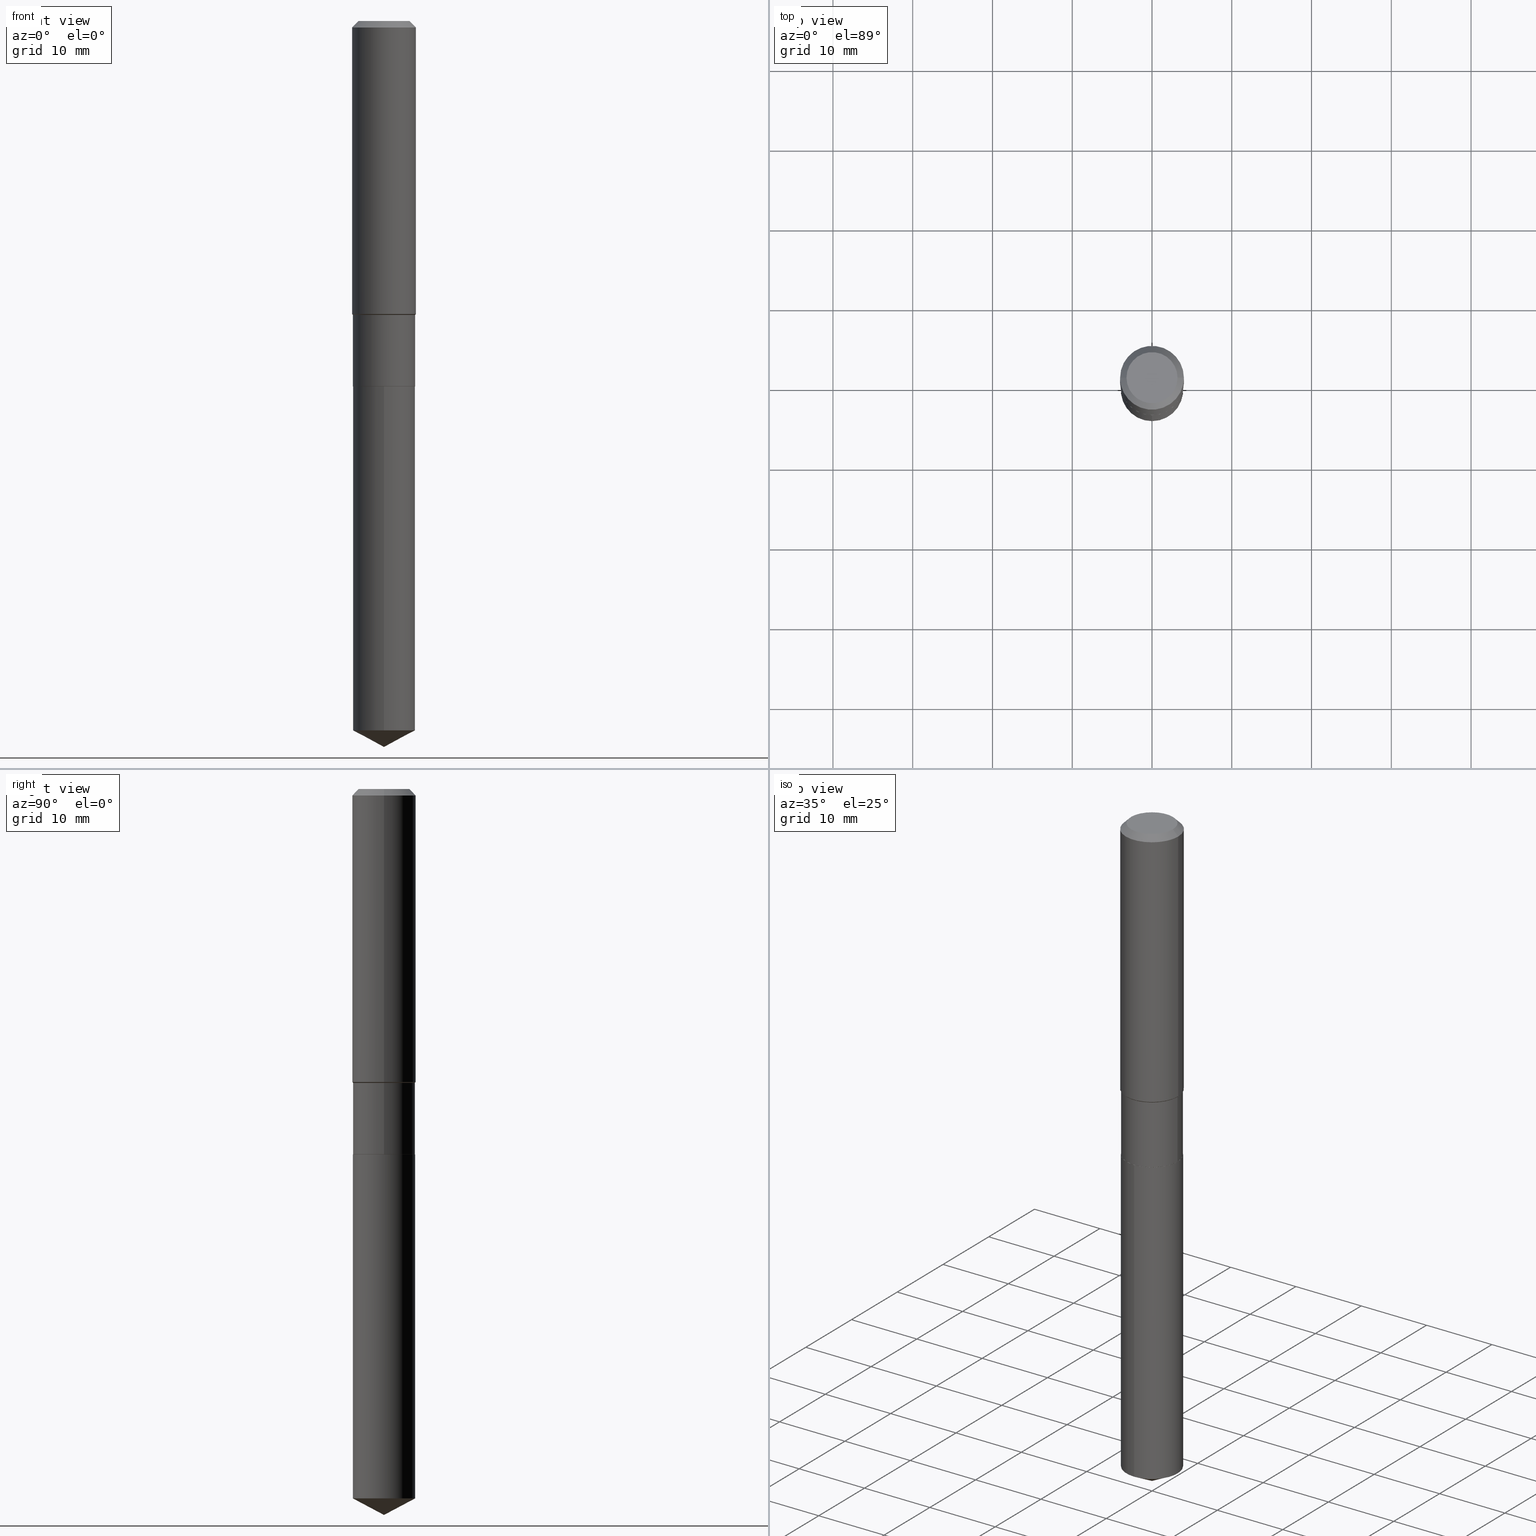
[diagram: canonical four-view strip — front | top / right | iso, engineering-drawing reading convention]
A machine part, canonical four-view strip (front | top / right | iso — engineering-drawing reading convention). The complete STEP part file that produces these views, byte-faithful:
ISO-10303-21;
HEADER;
FILE_DESCRIPTION (( 'STEP AP203' ),
    '1' );
FILE_NAME ('64848.STEP',
    '2024-04-24T19:13:29',
    ( '' ),
    ( '' ),
    'SwSTEP 2.0',
    'SolidWorks 2023',
    '' );
FILE_SCHEMA (( 'CONFIG_CONTROL_DESIGN' ));
ENDSEC;

DATA;
#1 = EDGE_CURVE ( 'NONE', #166, #127, #35, .T. ) ;
#2 = MANIFOLD_SOLID_BREP ( 'Body-Move/Copy2[1]', #141 ) ;
#3 = LINE ( 'NONE', #256, #92 ) ;
#4 = ORIENTED_EDGE ( 'NONE', *, *, #163, .T. ) ;
#5 = LINE ( 'NONE', #116, #216 ) ;
#6 = CARTESIAN_POINT ( 'NONE',  ( -0.1530499999999999916, -5.205704265947015077E-15, -1.803200000000000136 ) ) ;
#7 = FACE_OUTER_BOUND ( 'NONE', #33, .T. ) ;
#8 = CARTESIAN_POINT ( 'NONE',  ( 0.1530499999999999916, -7.364581588021842889E-15, -1.803200000000000136 ) ) ;
#9 = DIRECTION ( 'NONE',  ( -2.445468806185136597E-29, 3.491481338843145583E-15, 1.000000000000000000 ) ) ;
#10 = CARTESIAN_POINT ( 'NONE',  ( 8.561697383162351005E-29, -1.222390883126290210E-14, -3.501056016768380186 ) ) ;
#11 = DIRECTION ( 'NONE',  ( 1.000000000000000000, -6.982962677686265133E-15, 0.000000000000000000 ) ) ;
#12 = AXIS2_PLACEMENT_3D ( 'NONE', #316, #89, #128 ) ;
#13 = LOCAL_TIME ( 15, 13, 29.00000000000000000, #90 ) ;
#14 = DIRECTION ( 'NONE',  ( -0.7071067811866199593, 7.493145998870616062E-15, 0.7071067811864750752 ) ) ;
#15 = CARTESIAN_POINT ( 'NONE',  ( 7.703226739483226971E-31, -1.099816621735597538E-16, -0.03150000000000019451 ) ) ;
#16 = EDGE_LOOP ( 'NONE', ( #404, #310, #367 ) ) ;
#17 = DIRECTION ( 'NONE',  ( 1.000000000000000000, -6.982962677686267499E-15, 0.000000000000000000 ) ) ;
#18 = ORIENTED_EDGE ( 'NONE', *, *, #163, .F. ) ;
#19 = PERSON_AND_ORGANIZATION ( #183, #403 ) ;
#20 = EDGE_LOOP ( 'NONE', ( #343, #271, #462 ) ) ;
#21 = DIRECTION ( 'NONE',  ( 1.000000000000000000, 0.000000000000000000, 0.000000000000000000 ) ) ;
#22 = DIRECTION ( 'NONE',  ( -6.982962677686265133E-15, -1.000000000000000000, 3.558252026915353702E-15 ) ) ;
#23 = CONICAL_SURFACE ( 'NONE', #364, 0.1530499999999999916, 0.7853981633975507526 ) ;
#24 = CYLINDRICAL_SURFACE ( 'NONE', #354, 0.1535499999999999921 ) ;
#25 = CARTESIAN_POINT ( 'NONE',  ( 0.1575000000000001676, -6.148673211769718717E-15, -1.446050000000000058 ) ) ;
#26 = VECTOR ( 'NONE', #311, 39.37007874015748143 ) ;
#27 = AXIS2_PLACEMENT_3D ( 'NONE', #423, #473, #475 ) ;
#28 = PERSON_AND_ORGANIZATION ( #183, #403 ) ;
#29 = APPROVAL_PERSON_ORGANIZATION ( #129, #288, #346 ) ;
#30 = DIRECTION ( 'NONE',  ( 1.000000000000000000, -6.982962677686265133E-15, 0.000000000000000000 ) ) ;
#31 = DIRECTION ( 'NONE',  ( -2.445468806185136597E-29, 3.491481338843145583E-15, 1.000000000000000000 ) ) ;
#32 = EDGE_CURVE ( 'NONE', #442, #211, #304, .T. ) ;
#33 = EDGE_LOOP ( 'NONE', ( #334, #114 ) ) ;
#34 = CARTESIAN_POINT ( 'NONE',  ( 4.409669351313038346E-29, -6.295839150201959750E-15, -1.803200000000000136 ) ) ;
#35 = CIRCLE ( 'NONE', #102, 0.1535499999999999365 ) ;
#36 = CONICAL_SURFACE ( 'NONE', #419, 0.1535499999999999365, 0.7853981633974634891 ) ;
#37 = APPROVAL_PERSON_ORGANIZATION ( #258, #173, #373 ) ;
#38 = CC_DESIGN_DATE_AND_TIME_ASSIGNMENT ( #390, #192, ( #420 ) ) ;
#39 = FACE_OUTER_BOUND ( 'NONE', #152, .T. ) ;
#40 = APPROVAL_DATE_TIME ( #326, #173 ) ;
#41 = DIRECTION ( 'NONE',  ( -2.445468806185136597E-29, 3.491481338843145583E-15, 1.000000000000000000 ) ) ;
#42 = ORIENTED_EDGE ( 'NONE', *, *, #452, .T. ) ;
#43 = ORIENTED_EDGE ( 'NONE', *, *, #407, .T. ) ;
#44 = FACE_OUTER_BOUND ( 'NONE', #289, .T. ) ;
#45 = DIRECTION ( 'NONE',  ( -2.445468806185136597E-29, 3.491481338843145583E-15, 1.000000000000000000 ) ) ;
#46 = ORIENTED_EDGE ( 'NONE', *, *, #72, .F. ) ;
#47 = CARTESIAN_POINT ( 'NONE',  ( 3.536270167184016952E-29, -5.048856590034130447E-15, -1.446050000000000058 ) ) ;
#48 = FACE_OUTER_BOUND ( 'NONE', #233, .T. ) ;
#49 = ORIENTED_EDGE ( 'NONE', *, *, #1, .T. ) ;
#50 = ORIENTED_EDGE ( 'NONE', *, *, #405, .T. ) ;
#51 = FACE_OUTER_BOUND ( 'NONE', #426, .T. ) ;
#52 = ORIENTED_EDGE ( 'NONE', *, *, #213, .T. ) ;
#53 = FACE_OUTER_BOUND ( 'NONE', #96, .T. ) ;
#54 = VECTOR ( 'NONE', #14, 39.37007874015748143 ) ;
#55 = AXIS2_PLACEMENT_3D ( 'NONE', #47, #78, #380 ) ;
#56 = FACE_OUTER_BOUND ( 'NONE', #241, .T. ) ;
#57 = CARTESIAN_POINT ( 'NONE',  ( -0.1530499999999999916, -5.208353493121126278E-15, -1.803200000000000136 ) ) ;
#58 = DIRECTION ( 'NONE',  ( 1.000000000000000000, -6.982962677686265922E-15, 4.876176775795935793E-29 ) ) ;
#59 = DIRECTION ( 'NONE',  ( 1.000000000000000000, -6.982962677686265133E-15, 0.000000000000000000 ) ) ;
#60 = DIRECTION ( 'NONE',  ( 0.000000000000000000, 0.000000000000000000, 1.000000000000000000 ) ) ;
#61 = EDGE_CURVE ( 'NONE', #242, #282, #272, .T. ) ;
#62 = CARTESIAN_POINT ( 'NONE',  ( 4.408446616909946105E-29, -6.294093409532539036E-15, -1.802700000000000191 ) ) ;
#63 = CC_DESIGN_PERSON_AND_ORGANIZATION_ASSIGNMENT ( #489, #435, ( #436 ) ) ;
#64 = AXIS2_PLACEMENT_3D ( 'NONE', #417, #82, #377 ) ;
#65 = DIRECTION ( 'NONE',  ( 0.7071067811865452413, -7.319954787623248157E-15, -0.7071067811865497932 ) ) ;
#66 = DATE_AND_TIME ( #400, #83 ) ;
#67 = LINE ( 'NONE', #188, #266 ) ;
#68 = DATE_AND_TIME ( #353, #181 ) ;
#69 = LINE ( 'NONE', #8, #275 ) ;
#70 = DATE_AND_TIME ( #95, #110 ) ;
#71 = ORIENTED_EDGE ( 'NONE', *, *, #72, .T. ) ;
#72 = EDGE_CURVE ( 'NONE', #298, #444, #278, .T. ) ;
#73 =( GEOMETRIC_REPRESENTATION_CONTEXT ( 3 ) GLOBAL_UNCERTAINTY_ASSIGNED_CONTEXT ( ( #131 ) ) GLOBAL_UNIT_ASSIGNED_CONTEXT ( ( #139, #285, #283 ) ) REPRESENTATION_CONTEXT ( 'NONE', 'WORKASPACE' ) );
#74 = DIRECTION ( 'NONE',  ( 1.000000000000000000, -6.982962677686265922E-15, 0.000000000000000000 ) ) ;
#75 = DIRECTION ( 'NONE',  ( -0.7071067811865582309, 7.493145998870392025E-15, 0.7071067811865368036 ) ) ;
#76 = CARTESIAN_POINT ( 'NONE',  ( 1.091038370759677758E-15, 0.1535499999999936915, -1.803200000000000580 ) ) ;
#77 = ORIENTED_EDGE ( 'NONE', *, *, #180, .T. ) ;
#78 = DIRECTION ( 'NONE',  ( -2.445468806185136597E-29, 3.491481338843145583E-15, 1.000000000000000000 ) ) ;
#79 = CARTESIAN_POINT ( 'NONE',  ( 0.000000000000000000, 0.000000000000000000, 0.000000000000000000 ) ) ;
#80 = ORIENTED_EDGE ( 'NONE', *, *, #446, .T. ) ;
#81 = CIRCLE ( 'NONE', #130, 0.1535500000000000198 ) ;
#82 = DIRECTION ( 'NONE',  ( -2.445468806185136597E-29, 3.491481338843145583E-15, 1.000000000000000000 ) ) ;
#83 = LOCAL_TIME ( 15, 13, 29.00000000000000000, #445 ) ;
#84 = CARTESIAN_POINT ( 'NONE',  ( -9.439721640706201686E-47, 1.347742071746726764E-32, 3.860086710912459732E-18 ) ) ;
#85 = APPROVAL ( #104, 'UNSPECIFIED' ) ;
#86 = CARTESIAN_POINT ( 'NONE',  ( 0.1535499999999999643, -1.072233919158725949E-15, 7.487369439234657779E-30 ) ) ;
#87 = EDGE_LOOP ( 'NONE', ( #348, #294 ) ) ;
#88 = CARTESIAN_POINT ( 'NONE',  ( 3.545929768968448850E-29, -5.062647941322561509E-15, -1.450000000000000178 ) ) ;
#89 = DIRECTION ( 'NONE',  ( -2.445468806185136597E-29, 3.491481338843145583E-15, 1.000000000000000000 ) ) ;
#90 = COORDINATED_UNIVERSAL_TIME_OFFSET ( 5, 0, .BEHIND. ) ;
#91 = AXIS2_PLACEMENT_3D ( 'NONE', #366, #327, #111 ) ;
#92 = VECTOR ( 'NONE', #75, 39.37007874015748143 ) ;
#93 = DIRECTION ( 'NONE',  ( 1.000000000000000000, -6.982962677686269077E-15, 0.000000000000000000 ) ) ;
#94 = CC_DESIGN_APPROVAL ( #173, ( #420 ) ) ;
#95 = CALENDAR_DATE ( 2024, 24, 4 ) ;
#96 = EDGE_LOOP ( 'NONE', ( #194, #154, #4, #399 ) ) ;
#97 = DIRECTION ( 'NONE',  ( -6.982962677686266711E-15, -1.000000000000000000, 3.558252026915354491E-15 ) ) ;
#98 = AXIS2_PLACEMENT_3D ( 'NONE', #206, #349, #22 ) ;
#99 = AXIS2_PLACEMENT_3D ( 'NONE', #476, #178, #58 ) ;
#100 = LENGTH_MEASURE_WITH_UNIT ( LENGTH_MEASURE( 0.02539999999999999897 ), #317 );
#101 = EDGE_CURVE ( 'NONE', #442, #322, #165, .T. ) ;
#102 = AXIS2_PLACEMENT_3D ( 'NONE', #88, #201, #59 ) ;
#103 = AXIS2_PLACEMENT_3D ( 'NONE', #15, #368, #371 ) ;
#104 = APPROVAL_STATUS ( 'not_yet_approved' ) ;
#105 = EDGE_CURVE ( 'NONE', #440, #300, #265, .T. ) ;
#106 = ADVANCED_BREP_SHAPE_REPRESENTATION ( '64848', ( #2, #161, #132 ), #73 ) ;
#107 = ORIENTED_EDGE ( 'NONE', *, *, #452, .F. ) ;
#108 = CONICAL_SURFACE ( 'NONE', #410, 74.04434902938325536, 1.082104136236484937 ) ;
#109 = AXIS2_PLACEMENT_3D ( 'NONE', #167, #9, #464 ) ;
#110 = LOCAL_TIME ( 15, 13, 29.00000000000000000, #406 ) ;
#111 = DIRECTION ( 'NONE',  ( 1.000000000000000000, -6.982962677686267499E-15, 4.876176775795936353E-29 ) ) ;
#112 = CARTESIAN_POINT ( 'NONE',  ( -1.072233919158640357E-15, -0.1535500000000122045, -3.501056016768379742 ) ) ;
#113 = DIRECTION ( 'NONE',  ( -2.445453554861553701E-29, 3.491503179606567708E-15, 1.000000000000000000 ) ) ;
#114 = ORIENTED_EDGE ( 'NONE', *, *, #427, .T. ) ;
#115 = DIRECTION ( 'NONE',  ( -2.445468806185136597E-29, 3.491481338843145583E-15, 1.000000000000000000 ) ) ;
#116 = CARTESIAN_POINT ( 'NONE',  ( 0.1535499999999999365, -6.134881860481286866E-15, -1.450000000000000178 ) ) ;
#117 = DIRECTION ( 'NONE',  ( 1.000000000000000000, -6.982962677686266711E-15, 4.876176775795935793E-29 ) ) ;
#118 = ORIENTED_EDGE ( 'NONE', *, *, #314, .F. ) ;
#119 = CYLINDRICAL_SURFACE ( 'NONE', #27, 0.1535499999999999643 ) ;
#120 = APPLICATION_CONTEXT ( 'configuration controlled 3d designs of mechanical parts and assemblies' ) ;
#122 = DIRECTION ( 'NONE',  ( -6.982962677686266711E-15, -1.000000000000000000, 3.558252026915354491E-15 ) ) ;
#121 = PLANE ( 'NONE',  #478 ) ;
#123 = DIRECTION ( 'NONE',  ( 2.445468806185136597E-29, -3.491481338843145583E-15, -1.000000000000000000 ) ) ;
#124 = CARTESIAN_POINT ( 'NONE',  ( 4.409669351313038346E-29, -6.295839150201959750E-15, -1.803200000000000136 ) ) ;
#125 = DIRECTION ( 'NONE',  ( 1.000000000000000000, -6.982962677686265922E-15, 0.000000000000000000 ) ) ;
#126 = APPROVAL_DATE_TIME ( #68, #85 ) ;
#127 = VERTEX_POINT ( 'NONE', #424 ) ;
#128 = DIRECTION ( 'NONE',  ( 1.000000000000000000, -6.982962677686265922E-15, 0.000000000000000000 ) ) ;
#129 = PERSON_AND_ORGANIZATION ( #183, #403 ) ;
#130 = AXIS2_PLACEMENT_3D ( 'NONE', #10, #308, #171 ) ;
#131 = UNCERTAINTY_MEASURE_WITH_UNIT (LENGTH_MEASURE( 1.000000000000000082E-05 ), #139, 'distance_accuracy_value', 'NONE');
#132 = AXIS2_PLACEMENT_3D ( 'NONE', #485, #60, #21 ) ;
#133 = CARTESIAN_POINT ( 'NONE',  ( 7.703226739483226971E-31, -1.099816621735597538E-16, -0.03150000000000019451 ) ) ;
#134 = ORIENTED_EDGE ( 'NONE', *, *, #405, .F. ) ;
#135 = CARTESIAN_POINT ( 'NONE',  ( -0.1575000000000000011, -1.460314317281686560E-15, -0.03150000000000019451 ) ) ;
#136 = EDGE_CURVE ( 'NONE', #374, #444, #303, .T. ) ;
#137 = ORIENTED_EDGE ( 'NONE', *, *, #101, .T. ) ;
#138 = APPROVAL_STATUS ( 'not_yet_approved' ) ;
#139 =( CONVERSION_BASED_UNIT ( 'INCH', #100 ) LENGTH_UNIT ( ) NAMED_UNIT ( #360 ) );
#140 = PRODUCT_DEFINITION ( 'UNKNOWN', '', #471, #281 ) ;
#141 = CLOSED_SHELL ( 'NONE', ( #261, #169, #412, #184, #296 ) ) ;
#142 = CIRCLE ( 'NONE', #193, 0.1575000000000000011 ) ;
#143 = EDGE_CURVE ( 'NONE', #298, #242, #439, .T. ) ;
#144 = APPLICATION_CONTEXT ( 'configuration controlled 3d designs of mechanical parts and assemblies' ) ;
#145 = CARTESIAN_POINT ( 'NONE',  ( -0.1535499999999999365, -4.587332304667917085E-15, -1.450000000000000178 ) ) ;
#146 = ORIENTED_EDGE ( 'NONE', *, *, #461, .T. ) ;
#147 = AXIS2_PLACEMENT_3D ( 'NONE', #474, #438, #397 ) ;
#148 = AXIS2_PLACEMENT_3D ( 'NONE', #34, #449, #255 ) ;
#149 = CARTESIAN_POINT ( 'NONE',  ( -9.439721640706201686E-47, 1.347742071746726764E-32, 3.860086710912459732E-18 ) ) ;
#150 = ORIENTED_EDGE ( 'NONE', *, *, #301, .T. ) ;
#151 = ORIENTED_EDGE ( 'NONE', *, *, #187, .F. ) ;
#152 = EDGE_LOOP ( 'NONE', ( #146, #253, #189, #200 ) ) ;
#153 = CARTESIAN_POINT ( 'NONE',  ( 8.761326451002488936E-29, -1.250900844157644740E-14, -3.582699999999999996 ) ) ;
#154 = ORIENTED_EDGE ( 'NONE', *, *, #136, .T. ) ;
#155 = ORIENTED_EDGE ( 'NONE', *, *, #307, .F. ) ;
#156 = CARTESIAN_POINT ( 'NONE',  ( -0.1535499999999999643, 1.091038370759633582E-15, -7.553024831086406471E-30 ) ) ;
#157 = CARTESIAN_POINT ( 'NONE',  ( -4.719860820353100843E-47, 6.738710358733633822E-33, 1.930043355456229866E-18 ) ) ;
#158 = LINE ( 'NONE', #86, #319 ) ;
#159 = LINE ( 'NONE', #460, #413 ) ;
#160 = CC_DESIGN_PERSON_AND_ORGANIZATION_ASSIGNMENT ( #19, #248, ( #140 ) ) ;
#161 = MANIFOLD_SOLID_BREP ( 'Body-Move/Copy2[2]', #237 ) ;
#162 = FACE_OUTER_BOUND ( 'NONE', #229, .T. ) ;
#163 = EDGE_CURVE ( 'NONE', #444, #282, #318, .T. ) ;
#164 = LINE ( 'NONE', #76, #251 ) ;
#165 = LINE ( 'NONE', #57, #54 ) ;
#166 = VERTEX_POINT ( 'NONE', #145 ) ;
#167 = CARTESIAN_POINT ( 'NONE',  ( 4.409669351313038346E-29, -6.295839150201959750E-15, -1.803200000000000136 ) ) ;
#168 = ORIENTED_EDGE ( 'NONE', *, *, #461, .F. ) ;
#169 = ADVANCED_FACE ( 'NONE', ( #441 ), #108, .T. ) ;
#170 = PERSON_AND_ORGANIZATION ( #183, #403 ) ;
#171 = DIRECTION ( 'NONE',  ( -6.982962677686265133E-15, -1.000000000000000000, 3.558252026915353702E-15 ) ) ;
#172 = DIRECTION ( 'NONE',  ( -2.445468806185136597E-29, 3.491481338843145583E-15, 1.000000000000000000 ) ) ;
#173 = APPROVAL ( #254, 'UNSPECIFIED' ) ;
#174 = VECTOR ( 'NONE', #306, 39.37007874015748143 ) ;
#175 = EDGE_LOOP ( 'NONE', ( #332, #49, #196, #134 ) ) ;
#176 = CARTESIAN_POINT ( 'NONE',  ( 4.409669351313038346E-29, -6.295839150201959750E-15, -1.803200000000000136 ) ) ;
#177 = EDGE_CURVE ( 'NONE', #382, #282, #409, .T. ) ;
#178 = DIRECTION ( 'NONE',  ( -2.438088387897960049E-29, 3.491481338843145188E-15, 1.000000000000000000 ) ) ;
#179 = ORIENTED_EDGE ( 'NONE', *, *, #213, .F. ) ;
#180 = EDGE_CURVE ( 'NONE', #322, #370, #340, .T. ) ;
#181 = LOCAL_TIME ( 15, 13, 29.00000000000000000, #401 ) ;
#182 = PERSON_AND_ORGANIZATION_ROLE ( 'creator' ) ;
#183 = PERSON ( 'UNSPECIFIED', 'UNSPECIFIED', 'UNSPECIFIED', ('UNSPECIFIED'), ('UNSPECIFIED'), ('UNSPECIFIED') ) ;
#184 = ADVANCED_FACE ( 'NONE', ( #56 ), #24, .T. ) ;
#185 = CARTESIAN_POINT ( 'NONE',  ( 4.409669351313038346E-29, -6.295839150201959750E-15, -1.803200000000000136 ) ) ;
#186 = PERSON_AND_ORGANIZATION ( #183, #403 ) ;
#187 = EDGE_CURVE ( 'NONE', #274, #389, #291, .T. ) ;
#188 = CARTESIAN_POINT ( 'NONE',  ( 8.761381935681746719E-29, -1.250892967504724288E-14, -3.582699999999999996 ) ) ;
#189 = ORIENTED_EDGE ( 'NONE', *, *, #143, .F. ) ;
#190 = CYLINDRICAL_SURFACE ( 'NONE', #91, 0.1575000000000000844 ) ;
#191 = CARTESIAN_POINT ( 'NONE',  ( 0.1535499999999999921, -7.366327328691265182E-15, -1.802700000000000191 ) ) ;
#192 = DATE_TIME_ROLE ( 'classification_date' ) ;
#193 = AXIS2_PLACEMENT_3D ( 'NONE', #133, #394, #480 ) ;
#194 = ORIENTED_EDGE ( 'NONE', *, *, #427, .F. ) ;
#195 = CARTESIAN_POINT ( 'NONE',  ( -0.1260000000000000009, 9.348441284752484904E-16, 3.860086710906114178E-18 ) ) ;
#196 = ORIENTED_EDGE ( 'NONE', *, *, #345, .T. ) ;
#197 = CARTESIAN_POINT ( 'NONE',  ( 7.703226739483226971E-31, -1.099816621735597538E-16, -0.03150000000000019451 ) ) ;
#198 = ORIENTED_EDGE ( 'NONE', *, *, #177, .T. ) ;
#199 = DIRECTION ( 'NONE',  ( -2.445468806185136597E-29, 3.491481338843145583E-15, 1.000000000000000000 ) ) ;
#200 = ORIENTED_EDGE ( 'NONE', *, *, #345, .F. ) ;
#201 = DIRECTION ( 'NONE',  ( -2.445468806185136597E-29, 3.491481338843145583E-15, 1.000000000000000000 ) ) ;
#202 = CARTESIAN_POINT ( 'NONE',  ( 8.761326451002487815E-29, -1.250900844157645055E-14, -3.582699999999999996 ) ) ;
#203 = CC_DESIGN_APPROVAL ( #85, ( #471 ) ) ;
#204 = CARTESIAN_POINT ( 'NONE',  ( 4.409669351313038346E-29, -6.295839150201959750E-15, -1.803200000000000136 ) ) ;
#205 = ADVANCED_FACE ( 'NONE', ( #465 ), #467, .T. ) ;
#206 = CARTESIAN_POINT ( 'NONE',  ( 8.561697383162351005E-29, -1.222390883126290210E-14, -3.501056016768380186 ) ) ;
#207 = DIRECTION ( 'NONE',  ( -2.445468806185136597E-29, 3.491481338843145583E-15, 1.000000000000000000 ) ) ;
#208 = ORIENTED_EDGE ( 'NONE', *, *, #180, .F. ) ;
#209 = CARTESIAN_POINT ( 'NONE',  ( 4.409669351313038346E-29, -6.295839150201959750E-15, -1.803200000000000136 ) ) ;
#210 = ORIENTED_EDGE ( 'NONE', *, *, #446, .F. ) ;
#211 = VERTEX_POINT ( 'NONE', #335 ) ;
#212 = VECTOR ( 'NONE', #342, 39.37007874015748143 ) ;
#213 = EDGE_CURVE ( 'NONE', #211, #370, #69, .T. ) ;
#214 = CC_DESIGN_PERSON_AND_ORGANIZATION_ASSIGNMENT ( #186, #219, ( #471 ) ) ;
#215 = DATE_TIME_ROLE ( 'creation_date' ) ;
#216 = VECTOR ( 'NONE', #227, 39.37007874015748143 ) ;
#217 = DIRECTION ( 'NONE',  ( -2.445468806185136597E-29, 3.491481338843145583E-15, 1.000000000000000000 ) ) ;
#218 = EDGE_CURVE ( 'NONE', #382, #374, #222, .T. ) ;
#219 = PERSON_AND_ORGANIZATION_ROLE ( 'design_supplier' ) ;
#220 = ADVANCED_FACE ( 'NONE', ( #259 ), #23, .T. ) ;
#221 = AXIS2_PLACEMENT_3D ( 'NONE', #434, #207, #17 ) ;
#222 = CIRCLE ( 'NONE', #238, 0.1260000000000000009 ) ;
#223 = CC_DESIGN_APPROVAL ( #288, ( #140 ) ) ;
#224 = FACE_OUTER_BOUND ( 'NONE', #325, .T. ) ;
#225 = ADVANCED_FACE ( 'NONE', ( #224 ), #190, .T. ) ;
#226 = DIRECTION ( 'NONE',  ( -2.445468806185136597E-29, 3.491481338843145583E-15, 1.000000000000000000 ) ) ;
#227 = DIRECTION ( 'NONE',  ( 0.7071067811865582309, -2.468850131082369079E-15, 0.7071067811865368036 ) ) ;
#228 = AXIS2_PLACEMENT_3D ( 'NONE', #204, #451, #97 ) ;
#229 = EDGE_LOOP ( 'NONE', ( #463, #415, #52, #208 ) ) ;
#230 = FACE_OUTER_BOUND ( 'NONE', #20, .T. ) ;
#231 = EDGE_LOOP ( 'NONE', ( #210, #77, #43, #375 ) ) ;
#232 = FACE_OUTER_BOUND ( 'NONE', #175, .T. ) ;
#233 = EDGE_LOOP ( 'NONE', ( #383, #454, #198, #260 ) ) ;
#234 = LINE ( 'NONE', #156, #174 ) ;
#235 = CARTESIAN_POINT ( 'NONE',  ( -0.1575000000000000844, 1.119104808822158392E-15, -7.747322767151481189E-30 ) ) ;
#236 = EDGE_LOOP ( 'NONE', ( #429, #312, #151, #155 ) ) ;
#237 = CLOSED_SHELL ( 'NONE', ( #220, #372, #362, #264, #421, #205, #455, #225, #469, #247, #487, #396 ) ) ;
#238 = AXIS2_PLACEMENT_3D ( 'NONE', #149, #31, #457 ) ;
#239 = CALENDAR_DATE ( 2024, 24, 4 ) ;
#240 = PRODUCT_RELATED_PRODUCT_CATEGORY ( 'detail', '', ( #436 ) ) ;
#241 = EDGE_LOOP ( 'NONE', ( #376, #150, #458, #118 ) ) ;
#242 = VERTEX_POINT ( 'NONE', #369 ) ;
#243 = APPROVAL_DATE_TIME ( #70, #288 ) ;
#244 = EDGE_CURVE ( 'NONE', #300, #389, #164, .T. ) ;
#245 = DIRECTION ( 'NONE',  ( 2.445453554861553421E-29, -3.491503179606567708E-15, -1.000000000000000000 ) ) ;
#246 = CONICAL_SURFACE ( 'NONE', #305, 0.1575000000000000011, 0.7853981633974450594 ) ;
#247 = ADVANCED_FACE ( 'NONE', ( #7 ), #121, .F. ) ;
#248 = PERSON_AND_ORGANIZATION_ROLE ( 'creator' ) ;
#249 = EDGE_CURVE ( 'NONE', #211, #442, #350, .T. ) ;
#250 = CARTESIAN_POINT ( 'NONE',  ( 3.545929768968448850E-29, -5.062647941322561509E-15, -1.450000000000000178 ) ) ;
#251 = VECTOR ( 'NONE', #113, 39.37007874015748143 ) ;
#252 = APPLICATION_PROTOCOL_DEFINITION ( 'international standard', 'config_control_design', 1994, #144 ) ;
#253 = ORIENTED_EDGE ( 'NONE', *, *, #483, .T. ) ;
#254 = APPROVAL_STATUS ( 'not_yet_approved' ) ;
#255 = DIRECTION ( 'NONE',  ( -6.982962677686266711E-15, -1.000000000000000000, 3.558252026915354491E-15 ) ) ;
#256 = CARTESIAN_POINT ( 'NONE',  ( -0.1535499999999999365, -3.971609570562927927E-15, -1.450000000000000178 ) ) ;
#257 = ORIENTED_EDGE ( 'NONE', *, *, #187, .T. ) ;
#258 = PERSON_AND_ORGANIZATION ( #183, #403 ) ;
#259 = FACE_OUTER_BOUND ( 'NONE', #450, .T. ) ;
#260 = ORIENTED_EDGE ( 'NONE', *, *, #277, .T. ) ;
#261 = ADVANCED_FACE ( 'NONE', ( #488 ), #486, .T. ) ;
#262 = CARTESIAN_POINT ( 'NONE',  ( -8.751634505810821479E-28, 1.249517860443089481E-13, 35.78737874015747877 ) ) ;
#263 = DIRECTION ( 'NONE',  ( 1.000000000000000000, -6.982962677686269077E-15, 0.000000000000000000 ) ) ;
#264 = ADVANCED_FACE ( 'NONE', ( #39 ), #36, .T. ) ;
#265 = CIRCLE ( 'NONE', #98, 0.1535500000000000198 ) ;
#266 = VECTOR ( 'NONE', #365, 39.37007874015747433 ) ;
#267 = CC_DESIGN_SECURITY_CLASSIFICATION ( #420, ( #471 ) ) ;
#268 = CARTESIAN_POINT ( 'NONE',  ( 0.1260000000000000009, -1.027466422270894443E-15, 3.860086710919128072E-18 ) ) ;
#269 = DIRECTION ( 'NONE',  ( -1.000000000000000000, 6.982962677686265922E-15, 0.000000000000000000 ) ) ;
#270 = CARTESIAN_POINT ( 'NONE',  ( 0.1575000000000000011, -1.190510096822576026E-15, -0.03150000000000019451 ) ) ;
#271 = ORIENTED_EDGE ( 'NONE', *, *, #357, .T. ) ;
#272 = LINE ( 'NONE', #235, #418 ) ;
#273 = PERSON_AND_ORGANIZATION ( #183, #403 ) ;
#274 = VERTEX_POINT ( 'NONE', #284 ) ;
#275 = VECTOR ( 'NONE', #359, 39.37007874015748143 ) ;
#276 = VECTOR ( 'NONE', #428, 39.37007874015748143 ) ;
#277 = EDGE_CURVE ( 'NONE', #282, #444, #142, .T. ) ;
#278 = LINE ( 'NONE', #388, #212 ) ;
#279 = PLANE ( 'NONE',  #286 ) ;
#280 = CONICAL_SURFACE ( 'NONE', #109, 0.1530499999999999916, 0.7853981633975507526 ) ;
#281 = DESIGN_CONTEXT ( 'detailed design', #144, 'design' ) ;
#282 = VERTEX_POINT ( 'NONE', #135 ) ;
#283 =( NAMED_UNIT ( * ) SI_UNIT ( $, .STERADIAN. ) SOLID_ANGLE_UNIT ( ) );
#284 = CARTESIAN_POINT ( 'NONE',  ( -1.072233919158681970E-15, -0.1535500000000062926, -1.803199999999999470 ) ) ;
#285 =( NAMED_UNIT ( * ) PLANE_ANGLE_UNIT ( ) SI_UNIT ( $, .RADIAN. ) );
#286 = AXIS2_PLACEMENT_3D ( 'NONE', #437, #245, #395 ) ;
#287 = APPROVAL_PERSON_ORGANIZATION ( #170, #85, #323 ) ;
#288 = APPROVAL ( #138, 'UNSPECIFIED' ) ;
#289 = EDGE_LOOP ( 'NONE', ( #42, #80, #168, #290 ) ) ;
#290 = ORIENTED_EDGE ( 'NONE', *, *, #407, .F. ) ;
#291 = CIRCLE ( 'NONE', #147, 0.1535499999999999921 ) ;
#292 = CIRCLE ( 'NONE', #484, 0.1535499999999999921 ) ;
#293 = COORDINATED_UNIVERSAL_TIME_OFFSET ( 5, 0, .BEHIND. ) ;
#294 = ORIENTED_EDGE ( 'NONE', *, *, #32, .F. ) ;
#295 = ORIENTED_EDGE ( 'NONE', *, *, #61, .T. ) ;
#296 = ADVANCED_FACE ( 'NONE', ( #351 ), #279, .F. ) ;
#297 = CARTESIAN_POINT ( 'NONE',  ( 0.1575000000000000011, -1.209798283909146741E-15, -0.03150000000000019451 ) ) ;
#298 = VERTEX_POINT ( 'NONE', #25 ) ;
#299 = DIRECTION ( 'NONE',  ( -6.982962677686266711E-15, -1.000000000000000000, 3.541896320645574279E-15 ) ) ;
#300 = VERTEX_POINT ( 'NONE', #347 ) ;
#301 = EDGE_CURVE ( 'NONE', #300, #440, #81, .T. ) ;
#302 = LINE ( 'NONE', #202, #276 ) ;
#303 = LINE ( 'NONE', #270, #363 ) ;
#304 = CIRCLE ( 'NONE', #447, 0.1530499999999999916 ) ;
#305 = AXIS2_PLACEMENT_3D ( 'NONE', #197, #123, #269 ) ;
#306 = DIRECTION ( 'NONE',  ( -2.445468806185136877E-29, 3.491481338843145188E-15, 1.000000000000000000 ) ) ;
#307 = EDGE_CURVE ( 'NONE', #440, #274, #159, .T. ) ;
#308 = DIRECTION ( 'NONE',  ( -2.445453554861553701E-29, 3.491503179606567708E-15, 1.000000000000000000 ) ) ;
#309 = CARTESIAN_POINT ( 'NONE',  ( 3.545929768968448850E-29, -5.062647941322561509E-15, -1.450000000000000178 ) ) ;
#310 = ORIENTED_EDGE ( 'NONE', *, *, #320, .T. ) ;
#311 = DIRECTION ( 'NONE',  ( -0.7071067811865452413, 2.468850131082233000E-15, -0.7071067811865497932 ) ) ;
#312 = ORIENTED_EDGE ( 'NONE', *, *, #244, .T. ) ;
#313 = CONICAL_SURFACE ( 'NONE', #329, 74.04434902938325536, 1.082104136236484937 ) ;
#314 = EDGE_CURVE ( 'NONE', #389, #274, #356, .T. ) ;
#315 = DIRECTION ( 'NONE',  ( -2.445453554861553701E-29, 3.491503179606567708E-15, 1.000000000000000000 ) ) ;
#316 = CARTESIAN_POINT ( 'NONE',  ( 7.703226739483226971E-31, -1.099816621735597538E-16, -0.03150000000000019451 ) ) ;
#317 =( LENGTH_UNIT ( ) NAMED_UNIT ( * ) SI_UNIT ( $, .METRE. ) );
#318 = CIRCLE ( 'NONE', #12, 0.1575000000000000011 ) ;
#319 = VECTOR ( 'NONE', #468, 39.37007874015748143 ) ;
#320 = EDGE_CURVE ( 'NONE', #393, #300, #67, .T. ) ;
#321 = APPLICATION_PROTOCOL_DEFINITION ( 'international standard', 'config_control_design', 1994, #120 ) ;
#322 = VERTEX_POINT ( 'NONE', #411 ) ;
#323 = APPROVAL_ROLE ( '' ) ;
#324 = AXIS2_PLACEMENT_3D ( 'NONE', #309, #199, #11 ) ;
#325 = EDGE_LOOP ( 'NONE', ( #477, #50, #71, #391 ) ) ;
#326 = DATE_AND_TIME ( #331, #433 ) ;
#327 = DIRECTION ( 'NONE',  ( -2.445468806185136597E-29, 3.491481338843145583E-15, 1.000000000000000000 ) ) ;
#328 = CARTESIAN_POINT ( 'NONE',  ( 1.091038370759719765E-15, 0.1535499999999937193, -1.803200000000000580 ) ) ;
#329 = AXIS2_PLACEMENT_3D ( 'NONE', #262, #337, #299 ) ;
#330 = CARTESIAN_POINT ( 'NONE',  ( -8.751634505810821479E-28, 1.249517860443089481E-13, 35.78737874015747877 ) ) ;
#331 = CALENDAR_DATE ( 2024, 24, 4 ) ;
#332 = ORIENTED_EDGE ( 'NONE', *, *, #483, .F. ) ;
#333 = DIRECTION ( 'NONE',  ( 1.000000000000000000, -6.982962677686267499E-15, 4.876176775795936353E-29 ) ) ;
#334 = ORIENTED_EDGE ( 'NONE', *, *, #218, .T. ) ;
#335 = CARTESIAN_POINT ( 'NONE',  ( 0.1530499999999999916, -7.364581588021842889E-15, -1.803200000000000136 ) ) ;
#336 = ORIENTED_EDGE ( 'NONE', *, *, #143, .T. ) ;
#337 = DIRECTION ( 'NONE',  ( -2.445453554861553701E-29, 3.491503179606567708E-15, 1.000000000000000000 ) ) ;
#338 = DIRECTION ( 'NONE',  ( -2.445468806185136597E-29, 3.491481338843145583E-15, 1.000000000000000000 ) ) ;
#339 = DIRECTION ( 'NONE',  ( -1.000000000000000000, 6.982962677686265922E-15, -4.876176775795935793E-29 ) ) ;
#340 = CIRCLE ( 'NONE', #386, 0.1535499999999999921 ) ;
#341 = CIRCLE ( 'NONE', #324, 0.1535499999999999365 ) ;
#342 = DIRECTION ( 'NONE',  ( -2.445468806185136877E-29, 3.491481338843145188E-15, 1.000000000000000000 ) ) ;
#343 = ORIENTED_EDGE ( 'NONE', *, *, #320, .F. ) ;
#344 = CYLINDRICAL_SURFACE ( 'NONE', #355, 0.1575000000000000844 ) ;
#345 = EDGE_CURVE ( 'NONE', #127, #298, #5, .T. ) ;
#346 = APPROVAL_ROLE ( '' ) ;
#347 = CARTESIAN_POINT ( 'NONE',  ( 1.091038370759719173E-15, 0.1535499999999877796, -3.501056016768380630 ) ) ;
#348 = ORIENTED_EDGE ( 'NONE', *, *, #249, .F. ) ;
#349 = DIRECTION ( 'NONE',  ( -2.445453554861553701E-29, 3.491503179606567708E-15, 1.000000000000000000 ) ) ;
#350 = CIRCLE ( 'NONE', #402, 0.1530499999999999916 ) ;
#351 = FACE_OUTER_BOUND ( 'NONE', #408, .T. ) ;
#352 = CC_DESIGN_PERSON_AND_ORGANIZATION_ASSIGNMENT ( #273, #430, ( #420 ) ) ;
#353 = CALENDAR_DATE ( 2024, 24, 4 ) ;
#354 = AXIS2_PLACEMENT_3D ( 'NONE', #176, #315, #122 ) ;
#355 = AXIS2_PLACEMENT_3D ( 'NONE', #416, #226, #333 ) ;
#356 = CIRCLE ( 'NONE', #228, 0.1535499999999999921 ) ;
#357 = EDGE_CURVE ( 'NONE', #393, #440, #302, .T. ) ;
#358 = SECURITY_CLASSIFICATION_LEVEL ( 'unclassified' ) ;
#359 = DIRECTION ( 'NONE',  ( 0.7071067811866199593, -2.468850131083015945E-15, 0.7071067811864750752 ) ) ;
#360 = DIMENSIONAL_EXPONENTS ( 1.000000000000000000, 0.000000000000000000, 0.000000000000000000, 0.000000000000000000, 0.000000000000000000, 0.000000000000000000, 0.000000000000000000 ) ;
#361 = DIRECTION ( 'NONE',  ( 1.000000000000000000, -6.982962677686265922E-15, 0.000000000000000000 ) ) ;
#362 = ADVANCED_FACE ( 'NONE', ( #51 ), #344, .T. ) ;
#363 = VECTOR ( 'NONE', #65, 39.37007874015748143 ) ;
#364 = AXIS2_PLACEMENT_3D ( 'NONE', #185, #41, #74 ) ;
#365 = DIRECTION ( 'NONE',  ( 6.273719981627760554E-15, 0.8829475928589289868, 0.4694715627858871976 ) ) ;
#366 = CARTESIAN_POINT ( 'NONE',  ( 0.000000000000000000, 0.000000000000000000, 0.000000000000000000 ) ) ;
#367 = ORIENTED_EDGE ( 'NONE', *, *, #105, .F. ) ;
#368 = DIRECTION ( 'NONE',  ( 2.445468806185136597E-29, -3.491481338843145583E-15, -1.000000000000000000 ) ) ;
#369 = CARTESIAN_POINT ( 'NONE',  ( -0.1575000000000001676, -3.929751781211971266E-15, -1.446050000000000058 ) ) ;
#370 = VERTEX_POINT ( 'NONE', #191 ) ;
#371 = DIRECTION ( 'NONE',  ( -1.000000000000000000, 6.982962677686265922E-15, 0.000000000000000000 ) ) ;
#372 = ADVANCED_FACE ( 'NONE', ( #53 ), #448, .T. ) ;
#373 = APPROVAL_ROLE ( '' ) ;
#374 = VERTEX_POINT ( 'NONE', #268 ) ;
#375 = ORIENTED_EDGE ( 'NONE', *, *, #1, .F. ) ;
#376 = ORIENTED_EDGE ( 'NONE', *, *, #244, .F. ) ;
#377 = DIRECTION ( 'NONE',  ( 1.000000000000000000, -6.982962677686265133E-15, 0.000000000000000000 ) ) ;
#378 = DIRECTION ( 'NONE',  ( -2.445453554861553701E-29, 3.491503179606567708E-15, 1.000000000000000000 ) ) ;
#379 = CC_DESIGN_PERSON_AND_ORGANIZATION_ASSIGNMENT ( #28, #182, ( #471 ) ) ;
#380 = DIRECTION ( 'NONE',  ( 1.000000000000000000, -6.982962677686267499E-15, 0.000000000000000000 ) ) ;
#381 = DIRECTION ( 'NONE',  ( -2.445468806185136597E-29, 3.491481338843145583E-15, 1.000000000000000000 ) ) ;
#382 = VERTEX_POINT ( 'NONE', #195 ) ;
#383 = ORIENTED_EDGE ( 'NONE', *, *, #136, .F. ) ;
#384 = CARTESIAN_POINT ( 'NONE',  ( 4.408446616909946105E-29, -6.294093409532539036E-15, -1.802700000000000191 ) ) ;
#385 = CARTESIAN_POINT ( 'NONE',  ( -0.1575000000000000011, 9.898349595620272334E-16, -0.03150000000000019451 ) ) ;
#386 = AXIS2_PLACEMENT_3D ( 'NONE', #62, #381, #93 ) ;
#387 = CIRCLE ( 'NONE', #470, 0.1260000000000000009 ) ;
#388 = CARTESIAN_POINT ( 'NONE',  ( 0.1575000000000000844, -1.099816621735587677E-15, 7.679978421878603638E-30 ) ) ;
#389 = VERTEX_POINT ( 'NONE', #328 ) ;
#390 = DATE_AND_TIME ( #239, #13 ) ;
#391 = ORIENTED_EDGE ( 'NONE', *, *, #277, .F. ) ;
#392 = PLANE ( 'NONE',  #99 ) ;
#393 = VERTEX_POINT ( 'NONE', #153 ) ;
#394 = DIRECTION ( 'NONE',  ( -2.445468806185136597E-29, 3.491481338843145583E-15, 1.000000000000000000 ) ) ;
#395 = DIRECTION ( 'NONE',  ( 6.982962677686265922E-15, 1.000000000000000000, -3.491503179606567708E-15 ) ) ;
#396 = ADVANCED_FACE ( 'NONE', ( #162 ), #280, .T. ) ;
#397 = DIRECTION ( 'NONE',  ( -6.982962677686266711E-15, -1.000000000000000000, 3.558252026915354491E-15 ) ) ;
#398 = DIRECTION ( 'NONE',  ( -2.445468806185136597E-29, 3.491481338843145583E-15, 1.000000000000000000 ) ) ;
#399 = ORIENTED_EDGE ( 'NONE', *, *, #177, .F. ) ;
#400 = CALENDAR_DATE ( 2024, 24, 4 ) ;
#401 = COORDINATED_UNIVERSAL_TIME_OFFSET ( 5, 0, .BEHIND. ) ;
#402 = AXIS2_PLACEMENT_3D ( 'NONE', #124, #398, #361 ) ;
#403 = ORGANIZATION ( 'UNSPECIFIED', 'UNSPECIFIED', '' ) ;
#404 = ORIENTED_EDGE ( 'NONE', *, *, #357, .F. ) ;
#405 = EDGE_CURVE ( 'NONE', #242, #298, #456, .T. ) ;
#406 = COORDINATED_UNIVERSAL_TIME_OFFSET ( 5, 0, .BEHIND. ) ;
#407 = EDGE_CURVE ( 'NONE', #370, #127, #158, .T. ) ;
#408 = EDGE_LOOP ( 'NONE', ( #257, #482 ) ) ;
#409 = LINE ( 'NONE', #385, #26 ) ;
#410 = AXIS2_PLACEMENT_3D ( 'NONE', #330, #378, #466 ) ;
#411 = CARTESIAN_POINT ( 'NONE',  ( -0.1535499999999999921, -4.587332304667917085E-15, -1.802700000000000191 ) ) ;
#412 = ADVANCED_FACE ( 'NONE', ( #230 ), #313, .T. ) ;
#413 = VECTOR ( 'NONE', #431, 39.37007874015748143 ) ;
#414 = DIRECTION ( 'NONE',  ( 1.000000000000000000, -6.982962677686265922E-15, 4.876281427513067258E-29 ) ) ;
#415 = ORIENTED_EDGE ( 'NONE', *, *, #32, .T. ) ;
#416 = CARTESIAN_POINT ( 'NONE',  ( 0.000000000000000000, 0.000000000000000000, 0.000000000000000000 ) ) ;
#417 = CARTESIAN_POINT ( 'NONE',  ( 3.545929768968448850E-29, -5.062647941322561509E-15, -1.450000000000000178 ) ) ;
#418 = VECTOR ( 'NONE', #479, 39.37007874015748143 ) ;
#419 = AXIS2_PLACEMENT_3D ( 'NONE', #250, #217, #30 ) ;
#420 = SECURITY_CLASSIFICATION ( '', '', #358 ) ;
#421 = ADVANCED_FACE ( 'NONE', ( #44 ), #119, .T. ) ;
#422 = ORIENTED_EDGE ( 'NONE', *, *, #249, .T. ) ;
#423 = CARTESIAN_POINT ( 'NONE',  ( 0.000000000000000000, 0.000000000000000000, 0.000000000000000000 ) ) ;
#424 = CARTESIAN_POINT ( 'NONE',  ( 0.1535499999999999365, -6.134881860481286866E-15, -1.450000000000000178 ) ) ;
#425 = DIRECTION ( 'NONE',  ( 2.438088387897960049E-29, -3.491481338843145188E-15, -1.000000000000000000 ) ) ;
#426 = EDGE_LOOP ( 'NONE', ( #336, #295, #18, #46 ) ) ;
#427 = EDGE_CURVE ( 'NONE', #374, #382, #387, .T. ) ;
#428 = DIRECTION ( 'NONE',  ( -6.165590087286828929E-15, -0.8829475928589255451, 0.4694715627858933038 ) ) ;
#429 = ORIENTED_EDGE ( 'NONE', *, *, #105, .T. ) ;
#430 = PERSON_AND_ORGANIZATION_ROLE ( 'classification_officer' ) ;
#431 = DIRECTION ( 'NONE',  ( -2.445453554861553701E-29, 3.491503179606567708E-15, 1.000000000000000000 ) ) ;
#432 = AXIS2_PLACEMENT_3D ( 'NONE', #79, #45, #117 ) ;
#433 = LOCAL_TIME ( 15, 13, 29.00000000000000000, #293 ) ;
#434 = CARTESIAN_POINT ( 'NONE',  ( 3.536270167184016952E-29, -5.048856590034130447E-15, -1.446050000000000058 ) ) ;
#435 = PERSON_AND_ORGANIZATION_ROLE ( 'design_owner' ) ;
#436 = PRODUCT ( '64848', '64848', '', ( #443 ) ) ;
#437 = CARTESIAN_POINT ( 'NONE',  ( 4.409669351313038346E-29, -6.295839150201959750E-15, -1.803200000000000136 ) ) ;
#438 = DIRECTION ( 'NONE',  ( -2.445453554861553701E-29, 3.491503179606567708E-15, 1.000000000000000000 ) ) ;
#439 = CIRCLE ( 'NONE', #221, 0.1575000000000001676 ) ;
#440 = VERTEX_POINT ( 'NONE', #112 ) ;
#441 = FACE_OUTER_BOUND ( 'NONE', #16, .T. ) ;
#442 = VERTEX_POINT ( 'NONE', #6 ) ;
#443 = MECHANICAL_CONTEXT ( 'NONE', #120, 'mechanical' ) ;
#444 = VERTEX_POINT ( 'NONE', #297 ) ;
#445 = COORDINATED_UNIVERSAL_TIME_OFFSET ( 5, 0, .BEHIND. ) ;
#446 = EDGE_CURVE ( 'NONE', #322, #166, #234, .T. ) ;
#447 = AXIS2_PLACEMENT_3D ( 'NONE', #209, #172, #125 ) ;
#448 = CONICAL_SURFACE ( 'NONE', #103, 0.1575000000000000011, 0.7853981633974450594 ) ;
#449 = DIRECTION ( 'NONE',  ( -2.445453554861553701E-29, 3.491503179606567708E-15, 1.000000000000000000 ) ) ;
#450 = EDGE_LOOP ( 'NONE', ( #422, #137, #107, #179 ) ) ;
#451 = DIRECTION ( 'NONE',  ( -2.445453554861553701E-29, 3.491503179606567708E-15, 1.000000000000000000 ) ) ;
#452 = EDGE_CURVE ( 'NONE', #370, #322, #292, .T. ) ;
#453 = SHAPE_DEFINITION_REPRESENTATION ( #472, #106 ) ;
#454 = ORIENTED_EDGE ( 'NONE', *, *, #218, .F. ) ;
#455 = ADVANCED_FACE ( 'NONE', ( #232 ), #490, .T. ) ;
#456 = CIRCLE ( 'NONE', #55, 0.1575000000000001676 ) ;
#457 = DIRECTION ( 'NONE',  ( 1.000000000000000000, -6.982962677686265922E-15, 4.876281427513067258E-29 ) ) ;
#458 = ORIENTED_EDGE ( 'NONE', *, *, #307, .T. ) ;
#459 = FACE_OUTER_BOUND ( 'NONE', #87, .T. ) ;
#460 = CARTESIAN_POINT ( 'NONE',  ( -1.072233919158681970E-15, -0.1535500000000062926, -1.803199999999999470 ) ) ;
#461 = EDGE_CURVE ( 'NONE', #127, #166, #341, .T. ) ;
#462 = ORIENTED_EDGE ( 'NONE', *, *, #301, .F. ) ;
#463 = ORIENTED_EDGE ( 'NONE', *, *, #101, .F. ) ;
#464 = DIRECTION ( 'NONE',  ( 1.000000000000000000, -6.982962677686265922E-15, 0.000000000000000000 ) ) ;
#465 = FACE_OUTER_BOUND ( 'NONE', #231, .T. ) ;
#466 = DIRECTION ( 'NONE',  ( -6.982962677686266711E-15, -1.000000000000000000, 3.541896320645574279E-15 ) ) ;
#467 = CYLINDRICAL_SURFACE ( 'NONE', #432, 0.1535499999999999643 ) ;
#468 = DIRECTION ( 'NONE',  ( -2.445468806185136877E-29, 3.491481338843145188E-15, 1.000000000000000000 ) ) ;
#469 = ADVANCED_FACE ( 'NONE', ( #48 ), #246, .T. ) ;
#470 = AXIS2_PLACEMENT_3D ( 'NONE', #84, #338, #414 ) ;
#471 = PRODUCT_DEFINITION_FORMATION_WITH_SPECIFIED_SOURCE ( 'ANY', '', #436, .NOT_KNOWN. ) ;
#472 = PRODUCT_DEFINITION_SHAPE ( 'NONE', 'NONE',  #140 ) ;
#473 = DIRECTION ( 'NONE',  ( -2.445468806185136597E-29, 3.491481338843145583E-15, 1.000000000000000000 ) ) ;
#474 = CARTESIAN_POINT ( 'NONE',  ( 4.409669351313038346E-29, -6.295839150201959750E-15, -1.803200000000000136 ) ) ;
#475 = DIRECTION ( 'NONE',  ( 1.000000000000000000, -6.982962677686266711E-15, 4.876176775795935793E-29 ) ) ;
#476 = CARTESIAN_POINT ( 'NONE',  ( 4.409669351313038346E-29, -6.295839150201959750E-15, -1.803200000000000136 ) ) ;
#477 = ORIENTED_EDGE ( 'NONE', *, *, #61, .F. ) ;
#478 = AXIS2_PLACEMENT_3D ( 'NONE', #157, #425, #339 ) ;
#479 = DIRECTION ( 'NONE',  ( -2.445468806185136877E-29, 3.491481338843145188E-15, 1.000000000000000000 ) ) ;
#480 = DIRECTION ( 'NONE',  ( 1.000000000000000000, -6.982962677686265922E-15, 0.000000000000000000 ) ) ;
#481 = CC_DESIGN_DATE_AND_TIME_ASSIGNMENT ( #66, #215, ( #140 ) ) ;
#482 = ORIENTED_EDGE ( 'NONE', *, *, #314, .T. ) ;
#483 = EDGE_CURVE ( 'NONE', #166, #242, #3, .T. ) ;
#484 = AXIS2_PLACEMENT_3D ( 'NONE', #384, #115, #263 ) ;
#485 = CARTESIAN_POINT ( 'NONE',  ( 0.000000000000000000, 0.000000000000000000, 0.000000000000000000 ) ) ;
#486 = CYLINDRICAL_SURFACE ( 'NONE', #148, 0.1535499999999999921 ) ;
#487 = ADVANCED_FACE ( 'NONE', ( #459 ), #392, .F. ) ;
#488 = FACE_OUTER_BOUND ( 'NONE', #236, .T. ) ;
#489 = PERSON_AND_ORGANIZATION ( #183, #403 ) ;
#490 = CONICAL_SURFACE ( 'NONE', #64, 0.1535499999999999365, 0.7853981633974634891 ) ;
ENDSEC;
END-ISO-10303-21;
